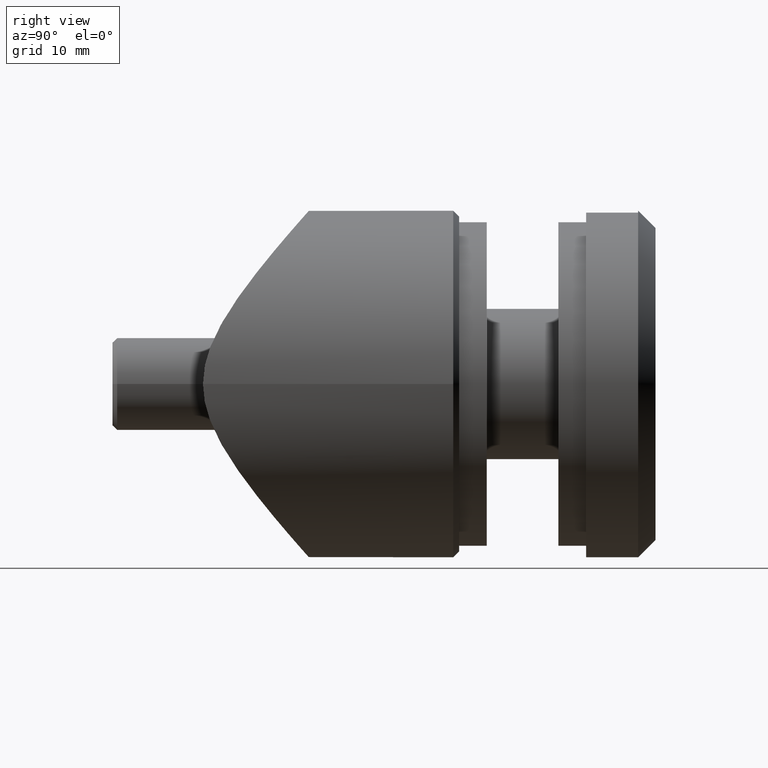
[diagram: clean part render]
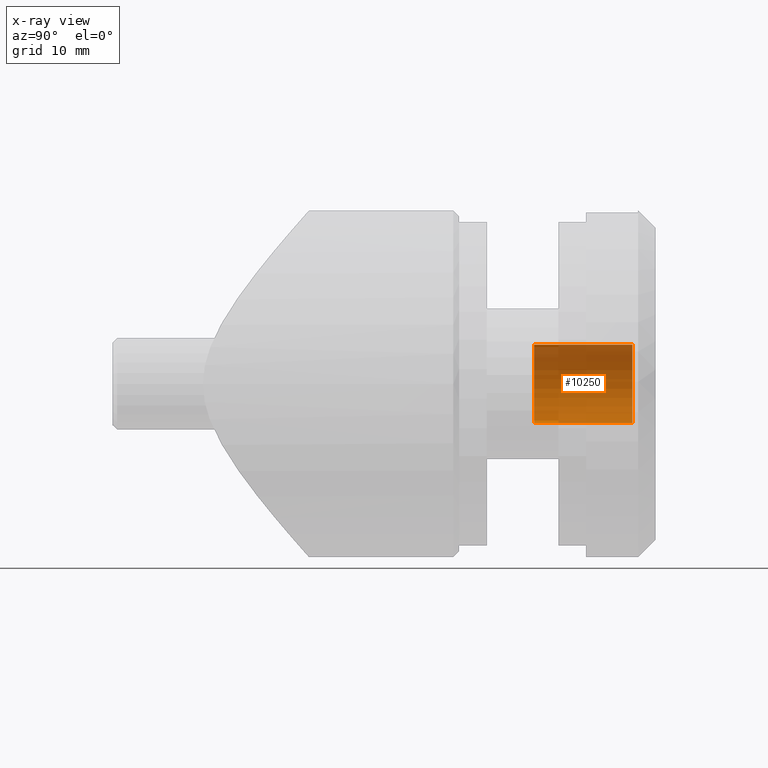
[diagram: x-ray — body ghosted, one internal face saturated and labeled with its STEP entity id]
A machine part, right view, then the same camera in x-ray: the body is ghosted and one INTERNAL B-rep face — a face not visible from any outside direction — is saturated and labeled: STEP entity #10250.
In plain terms, the highlighted cylindrical surface (partial cylindrical patch) has radius 3.4 mm, axis along (-0, -1, -0).
Its self-contained STEP definition (entity closure, byte-faithful):
#610 = CARTESIAN_POINT ( 'NONE',  ( 4.163799117100998094E-16, 0.5000000000000038858, 3.399999999999998135 ) ) ;
#752 = DIRECTION ( 'NONE',  ( -0.000000000000000000, -1.000000000000000000, -0.000000000000000000 ) ) ;
#978 = LINE ( 'NONE', #13800, #7232 ) ;
#1471 = CARTESIAN_POINT ( 'NONE',  ( 0.000000000000000000, 9.000000000000001776, -3.399999999999997691 ) ) ;
#1561 = ORIENTED_EDGE ( 'NONE', *, *, #2626, .T. ) ;
#1570 = DIRECTION ( 'NONE',  ( 0.000000000000000000, 0.000000000000000000, -1.000000000000000000 ) ) ;
#2066 = DIRECTION ( 'NONE',  ( -0.000000000000000000, -1.000000000000000000, -0.000000000000000000 ) ) ;
#2626 = EDGE_CURVE ( 'NONE', #9893, #11106, #11838, .T. ) ;
#2946 = AXIS2_PLACEMENT_3D ( 'NONE', #5968, #12974, #3848 ) ;
#3112 = EDGE_CURVE ( 'NONE', #9893, #8084, #12246, .T. ) ;
#3736 = VECTOR ( 'NONE', #752, 1000.000000000000000 ) ;
#3821 = ORIENTED_EDGE ( 'NONE', *, *, #9719, .T. ) ;
#3848 = DIRECTION ( 'NONE',  ( 0.000000000000000000, 0.000000000000000000, -1.000000000000000000 ) ) ;
#4320 = CARTESIAN_POINT ( 'NONE',  ( 4.163799117100998094E-16, 0.000000000000000000, 3.399999999999998135 ) ) ;
#4786 = ORIENTED_EDGE ( 'NONE', *, *, #8942, .F. ) ;
#5075 = ORIENTED_EDGE ( 'NONE', *, *, #3112, .F. ) ;
#5780 = AXIS2_PLACEMENT_3D ( 'NONE', #14450, #7382, #1570 ) ;
#5968 = CARTESIAN_POINT ( 'NONE',  ( 0.000000000000000000, 0.5000000000000038858, 0.000000000000000000 ) ) ;
#7097 = EDGE_LOOP ( 'NONE', ( #5075, #1561, #3821, #4786 ) ) ;
#7232 = VECTOR ( 'NONE', #2066, 1000.000000000000000 ) ;
#7382 = DIRECTION ( 'NONE',  ( -0.000000000000000000, -1.000000000000000000, -0.000000000000000000 ) ) ;
#7706 = FACE_OUTER_BOUND ( 'NONE', #7097, .T. ) ;
#7749 = CARTESIAN_POINT ( 'NONE',  ( 0.000000000000000000, 0.5000000000000038858, -3.399999999999998135 ) ) ;
#8084 = VERTEX_POINT ( 'NONE', #1471 ) ;
#8251 = DIRECTION ( 'NONE',  ( 0.000000000000000000, 0.000000000000000000, -1.000000000000000000 ) ) ;
#8401 = CARTESIAN_POINT ( 'NONE',  ( 0.000000000000000000, 0.000000000000000000, 0.000000000000000000 ) ) ;
#8942 = EDGE_CURVE ( 'NONE', #8084, #11979, #978, .T. ) ;
#9037 = AXIS2_PLACEMENT_3D ( 'NONE', #8401, #15285, #8251 ) ;
#9078 = CARTESIAN_POINT ( 'NONE',  ( 4.163799117100998094E-16, 9.000000000000001776, 3.399999999999997691 ) ) ;
#9719 = EDGE_CURVE ( 'NONE', #11106, #11979, #12060, .T. ) ;
#9893 = VERTEX_POINT ( 'NONE', #9078 ) ;
#10250 = ADVANCED_FACE ( 'NONE', ( #7706 ), #10809, .F. ) ;
#10809 = CYLINDRICAL_SURFACE ( 'NONE', #9037, 3.399999999999998135 ) ;
#11106 = VERTEX_POINT ( 'NONE', #610 ) ;
#11838 = LINE ( 'NONE', #4320, #3736 ) ;
#11979 = VERTEX_POINT ( 'NONE', #7749 ) ;
#12060 = CIRCLE ( 'NONE', #2946, 3.399999999999998135 ) ;
#12246 = CIRCLE ( 'NONE', #5780, 3.399999999999997691 ) ;
#12974 = DIRECTION ( 'NONE',  ( 0.000000000000000000, -1.000000000000000000, 0.000000000000000000 ) ) ;
#13800 = CARTESIAN_POINT ( 'NONE',  ( 0.000000000000000000, 0.000000000000000000, -3.399999999999998135 ) ) ;
#14450 = CARTESIAN_POINT ( 'NONE',  ( 0.000000000000000000, 9.000000000000001776, 0.000000000000000000 ) ) ;
#15285 = DIRECTION ( 'NONE',  ( -0.000000000000000000, -1.000000000000000000, -0.000000000000000000 ) ) ;